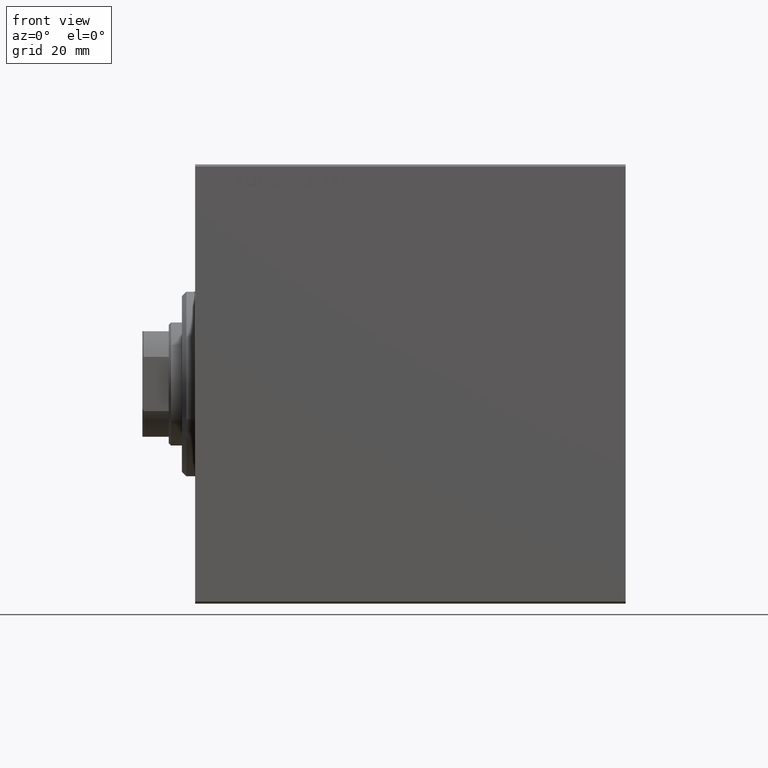
[diagram: clean part render]
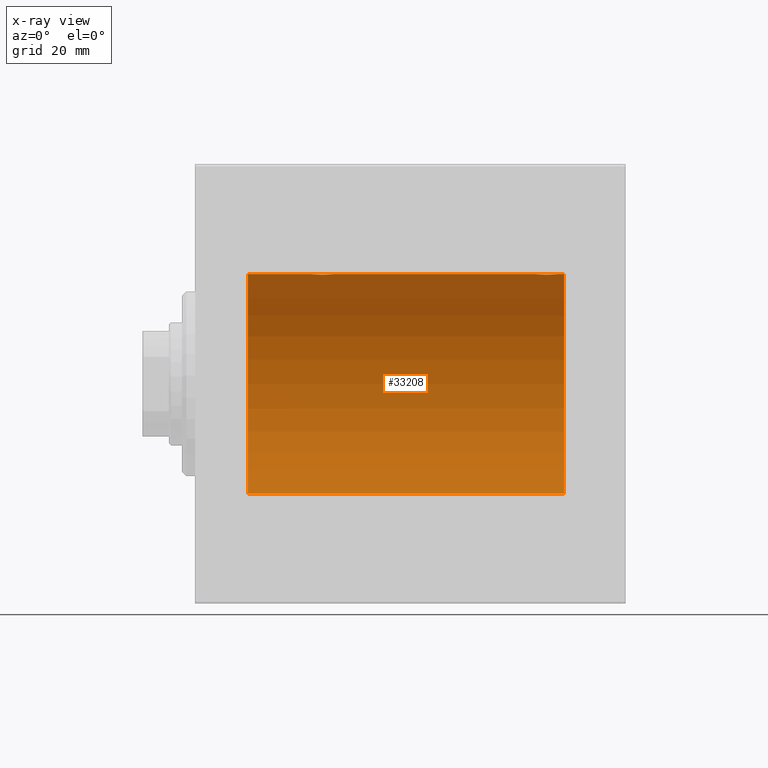
[diagram: x-ray — body ghosted, one internal face saturated and labeled with its STEP entity id]
A machine part, front view, then the same camera in x-ray: the body is ghosted and one INTERNAL B-rep face — a face not visible from any outside direction — is saturated and labeled: STEP entity #33208.
In plain terms, the highlighted cylindrical surface (partial cylindrical patch) has radius 25 mm, axis along (-1, -0, -0).
Its self-contained STEP definition (entity closure, byte-faithful):
#1210 = CARTESIAN_POINT ( 'NONE',  ( 81.65214997850823408, 1.883339088673195327, 24.92922739080160355 ) ) ;
#1395 = CARTESIAN_POINT ( 'NONE',  ( 84.00000000000000000, 3.061616997868382254E-15, -25.00000000000000000 ) ) ;
#1859 = CARTESIAN_POINT ( 'NONE',  ( 82.50000000000001421, 0.1652919547268416056, 25.00000000000000355 ) ) ;
#1985 = CARTESIAN_POINT ( 'NONE',  ( 27.34924793645206975, 1.884745564839652721, 24.92912799315484662 ) ) ;
#2164 = VECTOR ( 'NONE', #23050, 1000.000000000000000 ) ;
#2307 = CARTESIAN_POINT ( 'NONE',  ( 78.01241165387911281, 1.525124164792365455, 24.95380474534677262 ) ) ;
#2430 = CARTESIAN_POINT ( 'NONE',  ( 27.89254763180204222, 2.247309494740949543, 24.89886665287248491 ) ) ;
#2521 = CARTESIAN_POINT ( 'NONE',  ( 78.89254763180203156, 2.247309494740944213, 24.89886665287247780 ) ) ;
#2742 = CARTESIAN_POINT ( 'NONE',  ( 81.10765995523904337, 2.247131495942863211, 24.89888190765473652 ) ) ;
#3058 = EDGE_CURVE ( 'NONE', #24113, #22368, #4735, .T. ) ;
#4099 = VERTEX_POINT ( 'NONE', #31026 ) ;
#4345 = CARTESIAN_POINT ( 'NONE',  ( 82.48376868269158990, 0.3278008924763897713, 24.99836206720143394 ) ) ;
#4725 = LINE ( 'NONE', #21892, #18514 ) ;
#4735 = LINE ( 'NONE', #1395, #38907 ) ;
#5333 = CARTESIAN_POINT ( 'NONE',  ( 28.19536086700186317, 2.372637051600623881, 24.88723676875458324 ) ) ;
#5427 = CARTESIAN_POINT ( 'NONE',  ( 77.83138181747520434, 1.254434665533501914, 24.96887599906796495 ) ) ;
#5649 = CARTESIAN_POINT ( 'NONE',  ( 77.75307623591049833, 1.108237982093032370, 24.97588368351298627 ) ) ;
#6706 = ORIENTED_EDGE ( 'NONE', *, *, #33950, .T. ) ;
#7226 = VERTEX_POINT ( 'NONE', #24778 ) ;
#7277 = ORIENTED_EDGE ( 'NONE', *, *, #39144, .T. ) ;
#7896 = ORIENTED_EDGE ( 'NONE', *, *, #41913, .T. ) ;
#8300 = DIRECTION ( 'NONE',  ( -1.000000000000000000, -0.000000000000000000, -0.000000000000000000 ) ) ;
#8673 = CARTESIAN_POINT ( 'NONE',  ( 84.00000000000000000, 0.000000000000000000, 25.00000000000000000 ) ) ;
#8777 = CARTESIAN_POINT ( 'NONE',  ( 79.67198227724999526, 2.483775543901331151, 24.87633190989611265 ) ) ;
#8900 = CARTESIAN_POINT ( 'NONE',  ( 27.74628466518808168, 2.169035936979783585, 24.90589343070811168 ) ) ;
#9213 = CARTESIAN_POINT ( 'NONE',  ( 77.50000000000001421, -1.940163953345817485E-23, 25.00000000000000000 ) ) ;
#9436 = CARTESIAN_POINT ( 'NONE',  ( 31.50000000000000000, -3.363311788663921560E-15, 25.00000000000000000 ) ) ;
#9656 = CARTESIAN_POINT ( 'NONE',  ( 80.64916515999327373, 2.419847904056426025, 24.88263203448060779 ) ) ;
#9777 = CARTESIAN_POINT ( 'NONE',  ( 26.75307623591046635, 1.108237982093033258, 24.97588368351298627 ) ) ;
#10093 = CARTESIAN_POINT ( 'NONE',  ( 84.00000000000000000, 0.000000000000000000, 25.00000000000000000 ) ) ;
#10428 = CARTESIAN_POINT ( 'NONE',  ( 26.50000000000000355, -1.940558383798427991E-23, 25.00000000000000000 ) ) ;
#10529 = DIRECTION ( 'NONE',  ( 0.000000000000000000, 0.000000000000000000, 1.000000000000000000 ) ) ;
#10855 = CARTESIAN_POINT ( 'NONE',  ( 26.50000000000000355, -1.940558383798427991E-23, 25.00000000000000000 ) ) ;
#11468 = CARTESIAN_POINT ( 'NONE',  ( 81.52633503512342372, 1.986787236855545924, 24.92109717386377810 ) ) ;
#12025 = CARTESIAN_POINT ( 'NONE',  ( 28.67198227724997395, 2.483775543901335592, 24.87633190989611265 ) ) ;
#12142 = CARTESIAN_POINT ( 'NONE',  ( 11.99999999999999645, 3.061616997868382254E-15, -25.00000000000000000 ) ) ;
#12240 = DIRECTION ( 'NONE',  ( -1.000000000000000000, -0.000000000000000000, -0.000000000000000000 ) ) ;
#12363 = EDGE_CURVE ( 'NONE', #37692, #21530, #4725, .T. ) ;
#12461 = CARTESIAN_POINT ( 'NONE',  ( 29.80683588887133340, 2.371819214216748239, 24.88731391344729360 ) ) ;
#12679 = CARTESIAN_POINT ( 'NONE',  ( 28.83773523386617654, 2.500059064463603153, 24.87467999146394959 ) ) ;
#13004 = CARTESIAN_POINT ( 'NONE',  ( 80.16407969376739118, 2.499940606140130583, 24.87469189697261740 ) ) ;
#15361 = CARTESIAN_POINT ( 'NONE',  ( 30.52633503512342017, 1.986787236855546368, 24.92109717386378520 ) ) ;
#15581 = CARTESIAN_POINT ( 'NONE',  ( 26.83138181747519369, 1.254434665533501247, 24.96887599906796140 ) ) ;
#15727 = B_SPLINE_CURVE_WITH_KNOTS ( 'NONE', 3,
 ( #42012, #1859, #4345, #29062, #42655, #17942, #28195, #41786, #24858, #1210, #11468, #40202, #2742, #23265, #9656, #39758, #13004, #29731, #8777, #26614, #22384, #2521, #16345, #22599, #33077, #36636, #2307, #5427, #5649, #35967, #33296, #16120, #43552, #9213 ),
 .UNSPECIFIED., .F., .F.,
 ( 4, 2, 2, 2, 2, 2, 2, 2, 2, 2, 2, 2, 2, 2, 2, 2, 4 ),
 ( 2.712282590340838778E-18, 0.0004888140276038966661, 0.0009776280552077907301, 0.001466442082811684035, 0.001955256110415577123, 0.002444070138019470862, 0.002932884165623363733, 0.003421698193227256605, 0.003910512220831149910, 0.004399326248435042781, 0.004888140276038936520, 0.005376954303642829391, 0.005865768331246722263, 0.006354582358850615134, 0.006843396386454508006, 0.007332210414058401744, 0.007821024441662294616 ),
 .UNSPECIFIED. ) ;
#16022 = CARTESIAN_POINT ( 'NONE',  ( 31.50000000000000000, -3.363311788663921560E-15, 25.00000000000000000 ) ) ;
#16120 = CARTESIAN_POINT ( 'NONE',  ( 77.51635884985689984, 0.3289998300458005231, 24.99834914448731737 ) ) ;
#16134 = CARTESIAN_POINT ( 'NONE',  ( 11.99999999999999645, 0.000000000000000000, 25.00000000000000000 ) ) ;
#16345 = CARTESIAN_POINT ( 'NONE',  ( 78.74628466518808523, 2.169035936979781365, 24.90589343070811168 ) ) ;
#16907 = CARTESIAN_POINT ( 'NONE',  ( 26.58033563915884656, 0.6495680347195832427, 24.99207398768919575 ) ) ;
#17942 = CARTESIAN_POINT ( 'NONE',  ( 82.24651678820872291, 1.109060198064593328, 24.97584694923138215 ) ) ;
#18514 = VECTOR ( 'NONE', #35482, 1000.000000000000000 ) ;
#18923 = DIRECTION ( 'NONE',  ( -1.000000000000000000, -0.000000000000000000, -0.000000000000000000 ) ) ;
#19340 = ORIENTED_EDGE ( 'NONE', *, *, #38601, .T. ) ;
#20472 = CARTESIAN_POINT ( 'NONE',  ( 26.62762890801418791, 0.8054273576766337595, 24.98748174524256171 ) ) ;
#20904 = CARTESIAN_POINT ( 'NONE',  ( 84.00000000000000000, 0.000000000000000000, 25.00000000000000000 ) ) ;
#21243 = DIRECTION ( 'NONE',  ( -1.000000000000000000, 0.000000000000000000, 0.000000000000000000 ) ) ;
#21267 = CIRCLE ( 'NONE', #29085, 25.00000000000000000 ) ;
#21530 = VERTEX_POINT ( 'NONE', #16134 ) ;
#21553 = B_SPLINE_CURVE_WITH_KNOTS ( 'NONE', 3,
 ( #16022, #42788, #43005, #43452, #40111, #22290, #32539, #22504, #23170, #22962, #15361, #39448, #36090, #12461, #28968, #26067, #33199, #12679, #12025, #32985, #5333, #2430, #8900, #29633, #1985, #39889, #43224, #15581, #9777, #20472, #16907, #23385, #40974, #10428 ),
 .UNSPECIFIED., .F., .F.,
 ( 4, 2, 2, 2, 2, 2, 2, 2, 2, 2, 2, 2, 2, 2, 2, 2, 4 ),
 ( 5.557925451109527434E-18, 0.0004888140276038975334, 0.0009776280552077896459, 0.001466442082811681216, 0.001955256110415572787, 0.002444070138019463923, 0.002932884165623355927, 0.003421698193227247064, 0.003910512220831138634, 0.004399326248435030638, 0.004888140276038921775, 0.005376954303642814646, 0.005865768331246706650, 0.006354582358850598654, 0.006843396386454489791, 0.007332210414058382662, 0.007821024441662273799 ),
 .UNSPECIFIED. ) ;
#21892 = CARTESIAN_POINT ( 'NONE',  ( 84.00000000000000000, 0.000000000000000000, 25.00000000000000000 ) ) ;
#22001 = ORIENTED_EDGE ( 'NONE', *, *, #12363, .T. ) ;
#22281 = CYLINDRICAL_SURFACE ( 'NONE', #24780, 25.00000000000000000 ) ;
#22290 = CARTESIAN_POINT ( 'NONE',  ( 31.24651678820870515, 1.109060198064595992, 24.97584694923138215 ) ) ;
#22368 = VERTEX_POINT ( 'NONE', #12142 ) ;
#22384 = CARTESIAN_POINT ( 'NONE',  ( 79.19536086700188093, 2.372637051600620328, 24.88723676875458324 ) ) ;
#22489 = LINE ( 'NONE', #8673, #34872 ) ;
#22504 = CARTESIAN_POINT ( 'NONE',  ( 30.98824666821940355, 1.524323445682836953, 24.95385641887459016 ) ) ;
#22599 = CARTESIAN_POINT ( 'NONE',  ( 78.47549655812819935, 1.988066470813636410, 24.92099187803979987 ) ) ;
#22962 = CARTESIAN_POINT ( 'NONE',  ( 30.65214997850824830, 1.883339088673197992, 24.92922739080161421 ) ) ;
#23050 = DIRECTION ( 'NONE',  ( -1.000000000000000000, -0.000000000000000000, -0.000000000000000000 ) ) ;
#23067 = DIRECTION ( 'NONE',  ( -1.000000000000000000, 0.000000000000000000, 0.000000000000000000 ) ) ;
#23170 = CARTESIAN_POINT ( 'NONE',  ( 30.88269712975891323, 1.652881481536637054, 24.94556728625771669 ) ) ;
#23265 = CARTESIAN_POINT ( 'NONE',  ( 80.80683588887137603, 2.371819214216743799, 24.88731391344729360 ) ) ;
#23340 = AXIS2_PLACEMENT_3D ( 'NONE', #24385, #21243, #10529 ) ;
#23385 = CARTESIAN_POINT ( 'NONE',  ( 26.51635884985689984, 0.3289998300458025771, 24.99834914448731737 ) ) ;
#23504 = CARTESIAN_POINT ( 'NONE',  ( 84.00000000000000000, 0.000000000000000000, 0.000000000000000000 ) ) ;
#24113 = VERTEX_POINT ( 'NONE', #29338 ) ;
#24385 = CARTESIAN_POINT ( 'NONE',  ( 11.99999999999999645, 0.000000000000000000, 0.000000000000000000 ) ) ;
#24570 = ORIENTED_EDGE ( 'NONE', *, *, #40790, .T. ) ;
#24575 = ORIENTED_EDGE ( 'NONE', *, *, #3058, .F. ) ;
#24778 = CARTESIAN_POINT ( 'NONE',  ( 82.50000000000001421, 2.791216707898424283E-15, 25.00000000000000000 ) ) ;
#24780 = AXIS2_PLACEMENT_3D ( 'NONE', #29182, #12240, #32529 ) ;
#24858 = CARTESIAN_POINT ( 'NONE',  ( 81.88269712975893810, 1.652881481536634167, 24.94556728625772024 ) ) ;
#26067 = CARTESIAN_POINT ( 'NONE',  ( 29.32637449227344817, 2.484060984458440924, 24.87630362147114127 ) ) ;
#26421 = EDGE_LOOP ( 'NONE', ( #24575, #30194, #19340, #7277, #7896, #24570, #22001, #6706 ) ) ;
#26614 = CARTESIAN_POINT ( 'NONE',  ( 79.35125657267359145, 2.419890192637109028, 24.88262770889313558 ) ) ;
#28195 = CARTESIAN_POINT ( 'NONE',  ( 82.16970456409872270, 1.252624798282892860, 24.96896960740658500 ) ) ;
#28968 = CARTESIAN_POINT ( 'NONE',  ( 29.64916515999327018, 2.419847904056432686, 24.88263203448061134 ) ) ;
#29062 = CARTESIAN_POINT ( 'NONE',  ( 82.42019035479160038, 0.6474866336855787941, 24.99212517028518832 ) ) ;
#29085 = AXIS2_PLACEMENT_3D ( 'NONE', #23504, #23067, #40221 ) ;
#29182 = CARTESIAN_POINT ( 'NONE',  ( 84.00000000000000000, 0.000000000000000000, 0.000000000000000000 ) ) ;
#29338 = CARTESIAN_POINT ( 'NONE',  ( 84.00000000000000000, 3.061616997868382254E-15, -25.00000000000000000 ) ) ;
#29633 = CARTESIAN_POINT ( 'NONE',  ( 27.47549655812821001, 1.988066470813638631, 24.92099187803980342 ) ) ;
#29731 = CARTESIAN_POINT ( 'NONE',  ( 79.83773523386616944, 2.500059064463600489, 24.87467999146394604 ) ) ;
#30194 = ORIENTED_EDGE ( 'NONE', *, *, #36257, .F. ) ;
#31026 = CARTESIAN_POINT ( 'NONE',  ( 77.50000000000001421, -1.940163953345817485E-23, 25.00000000000000000 ) ) ;
#32529 = DIRECTION ( 'NONE',  ( 0.000000000000000000, 0.000000000000000000, 1.000000000000000000 ) ) ;
#32539 = CARTESIAN_POINT ( 'NONE',  ( 31.16970456409868362, 1.252624798282893304, 24.96896960740657789 ) ) ;
#32976 = FACE_OUTER_BOUND ( 'NONE', #26421, .T. ) ;
#32985 = CARTESIAN_POINT ( 'NONE',  ( 28.35125657267360566, 2.419890192637116133, 24.88262770889313202 ) ) ;
#33077 = CARTESIAN_POINT ( 'NONE',  ( 78.34924793645207330, 1.884745564839651832, 24.92912799315484307 ) ) ;
#33199 = CARTESIAN_POINT ( 'NONE',  ( 29.16407969376738052, 2.499940606140134136, 24.87469189697262095 ) ) ;
#33208 = ADVANCED_FACE ( 'NONE', ( #32976 ), #22281, .F. ) ;
#33296 = CARTESIAN_POINT ( 'NONE',  ( 77.58033563915887498, 0.6495680347195814663, 24.99207398768919219 ) ) ;
#33734 = LINE ( 'NONE', #10093, #2164 ) ;
#33950 = EDGE_CURVE ( 'NONE', #21530, #22368, #43282, .T. ) ;
#34872 = VECTOR ( 'NONE', #18923, 1000.000000000000000 ) ;
#35482 = DIRECTION ( 'NONE',  ( -1.000000000000000000, -0.000000000000000000, -0.000000000000000000 ) ) ;
#35967 = CARTESIAN_POINT ( 'NONE',  ( 77.62762890801420212, 0.8054273576766330933, 24.98748174524255106 ) ) ;
#36090 = CARTESIAN_POINT ( 'NONE',  ( 30.10765995523902916, 2.247131495942866319, 24.89888190765473297 ) ) ;
#36257 = EDGE_CURVE ( 'NONE', #38819, #24113, #21267, .T. ) ;
#36636 = CARTESIAN_POINT ( 'NONE',  ( 78.11576698070011560, 1.651337078997080043, 24.94567646296264485 ) ) ;
#37692 = VERTEX_POINT ( 'NONE', #10855 ) ;
#38601 = EDGE_CURVE ( 'NONE', #38819, #7226, #22489, .T. ) ;
#38819 = VERTEX_POINT ( 'NONE', #20904 ) ;
#38907 = VECTOR ( 'NONE', #8300, 1000.000000000000000 ) ;
#39144 = EDGE_CURVE ( 'NONE', #7226, #4099, #15727, .T. ) ;
#39448 = CARTESIAN_POINT ( 'NONE',  ( 30.25304113529935890, 2.169541443998010966, 24.90585268157805032 ) ) ;
#39507 = VERTEX_POINT ( 'NONE', #9436 ) ;
#39758 = CARTESIAN_POINT ( 'NONE',  ( 80.32637449227345883, 2.484060984458436039, 24.87630362147113772 ) ) ;
#39889 = CARTESIAN_POINT ( 'NONE',  ( 27.11576698070013336, 1.651337078997080710, 24.94567646296264840 ) ) ;
#40111 = CARTESIAN_POINT ( 'NONE',  ( 31.37206391457592858, 0.8063280894284537981, 24.98745245851526064 ) ) ;
#40202 = CARTESIAN_POINT ( 'NONE',  ( 81.25304113529938377, 2.169541443998010521, 24.90585268157805032 ) ) ;
#40221 = DIRECTION ( 'NONE',  ( 0.000000000000000000, 0.000000000000000000, 1.000000000000000000 ) ) ;
#40790 = EDGE_CURVE ( 'NONE', #39507, #37692, #21553, .T. ) ;
#40974 = CARTESIAN_POINT ( 'NONE',  ( 26.50000000000000355, 0.1632133729155534341, 25.00000000000000355 ) ) ;
#41786 = CARTESIAN_POINT ( 'NONE',  ( 81.98824666821940355, 1.524323445682836509, 24.95385641887458661 ) ) ;
#41913 = EDGE_CURVE ( 'NONE', #4099, #39507, #33734, .T. ) ;
#42012 = CARTESIAN_POINT ( 'NONE',  ( 82.50000000000001421, 2.791216707898424283E-15, 25.00000000000000000 ) ) ;
#42655 = CARTESIAN_POINT ( 'NONE',  ( 82.37206391457593213, 0.8063280894284519107, 24.98745245851526420 ) ) ;
#42788 = CARTESIAN_POINT ( 'NONE',  ( 31.49999999999999289, 0.1652919547268403844, 25.00000000000000000 ) ) ;
#43005 = CARTESIAN_POINT ( 'NONE',  ( 31.48376868269157214, 0.3278008924763924359, 24.99836206720143394 ) ) ;
#43224 = CARTESIAN_POINT ( 'NONE',  ( 27.01241165387908083, 1.525124164792365677, 24.95380474534677262 ) ) ;
#43282 = CIRCLE ( 'NONE', #23340, 25.00000000000000000 ) ;
#43452 = CARTESIAN_POINT ( 'NONE',  ( 31.42019035479160038, 0.6474866336855810145, 24.99212517028518832 ) ) ;
#43552 = CARTESIAN_POINT ( 'NONE',  ( 77.50000000000000000, 0.1632133729155517687, 24.99999999999999645 ) ) ;